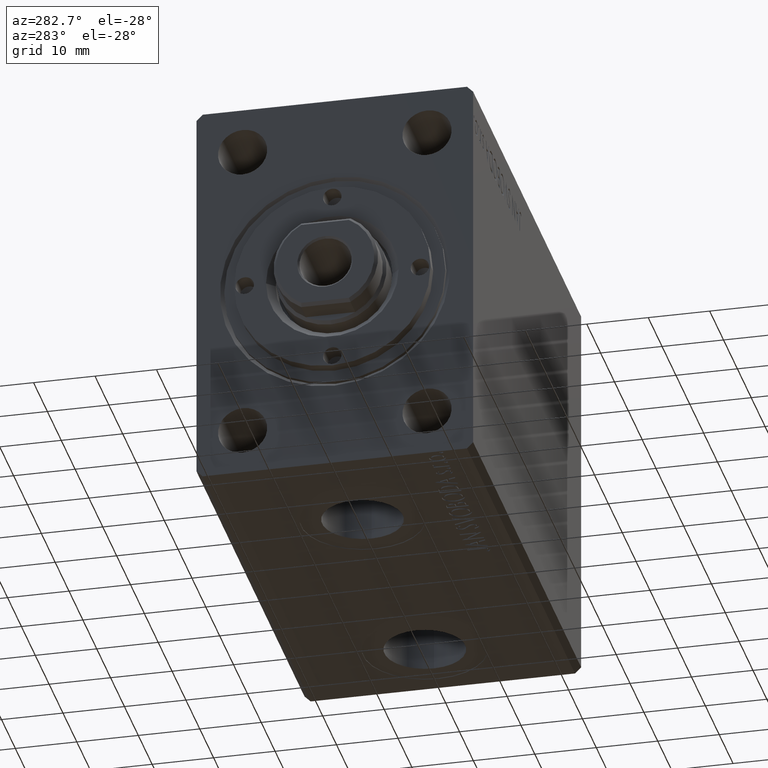
[diagram: clean part render]
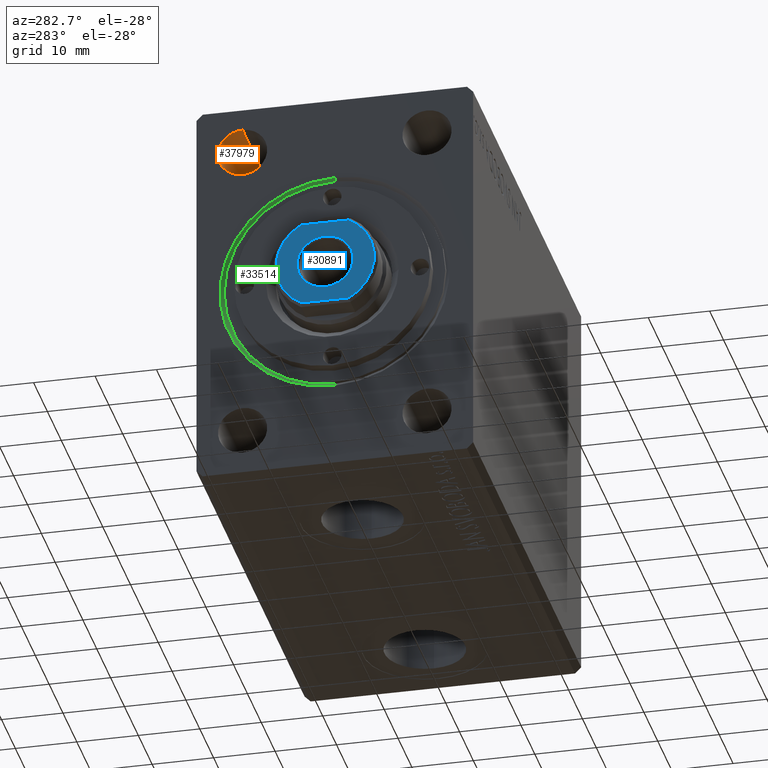
[diagram: same view with three faces highlighted in distinct colors, each labeled with its STEP entity id]
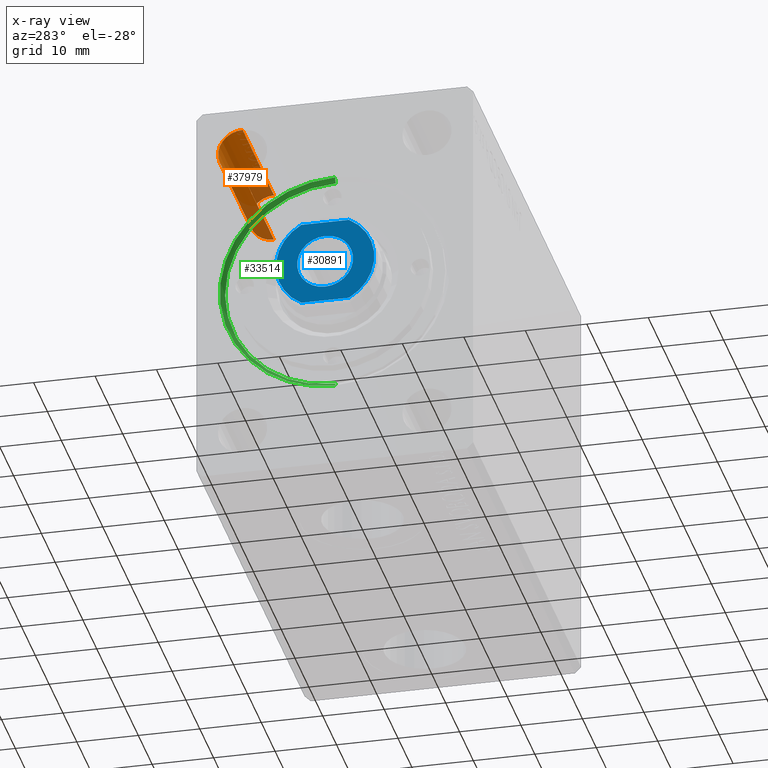
[diagram: x-ray of the same camera — body ghosted, the three highlighted faces saturated]
A machine part, auxiliary view with three faces highlighted in distinct colors.
The next image is the same camera in x-ray (body ghosted, the three faces saturated) — at least one of them is partly hidden behind the body in this view.
Their STEP definitions:

[orange] entity #37979 — the highlighted cylindrical surface (edge-blend (fillet) strip) has radius 4 mm, axis along (-1, -0, -0).
#2270 = VERTEX_POINT ( 'NONE', #20549 ) ;
#3091 = VECTOR ( 'NONE', #3822, 1000.000000000000000 ) ;
#3822 = DIRECTION ( 'NONE',  ( -1.000000000000000000, -0.000000000000000000, -0.000000000000000000 ) ) ;
#3898 = EDGE_CURVE ( 'NONE', #11748, #22157, #34385, .T. ) ;
#4143 = ORIENTED_EDGE ( 'NONE', *, *, #3898, .F. ) ;
#4702 = FACE_OUTER_BOUND ( 'NONE', #4785, .T. ) ;
#4785 = EDGE_LOOP ( 'NONE', ( #4143, #37177, #44143, #16825 ) ) ;
#5249 = VECTOR ( 'NONE', #29180, 1000.000000000000000 ) ;
#5989 = EDGE_CURVE ( 'NONE', #2270, #12817, #32512, .T. ) ;
#9918 = DIRECTION ( 'NONE',  ( -1.000000000000000000, -0.000000000000000000, -0.000000000000000000 ) ) ;
#11748 = VERTEX_POINT ( 'NONE', #24659 ) ;
#12817 = VERTEX_POINT ( 'NONE', #35869 ) ;
#14090 = CARTESIAN_POINT ( 'NONE',  ( 3.061616997868395467E-16, 15.00000000000000355, 25.00000000000000000 ) ) ;
#14962 = DIRECTION ( 'NONE',  ( -1.000000000000000000, -0.000000000000000000, -0.000000000000000000 ) ) ;
#16825 = ORIENTED_EDGE ( 'NONE', *, *, #25846, .T. ) ;
#17274 = CARTESIAN_POINT ( 'NONE',  ( 22.67000000000000171, 15.00000000000000355, 25.00000000000000000 ) ) ;
#17895 = CIRCLE ( 'NONE', #34999, 3.999999999999996447 ) ;
#18555 = CIRCLE ( 'NONE', #28544, 4.000000000000000000 ) ;
#19552 = CARTESIAN_POINT ( 'NONE',  ( 3.061616997868395467E-16, 15.00000000000000355, 21.00000000000000000 ) ) ;
#20549 = CARTESIAN_POINT ( 'NONE',  ( 22.67000000000000171, 15.00000000000000355, 28.99999999999999645 ) ) ;
#21220 = DIRECTION ( 'NONE',  ( -1.000000000000000000, -0.000000000000000000, -0.000000000000000000 ) ) ;
#22157 = VERTEX_POINT ( 'NONE', #19552 ) ;
#24342 = CARTESIAN_POINT ( 'NONE',  ( 0.000000000000000000, 15.00000000000000355, 21.00000000000000355 ) ) ;
#24659 = CARTESIAN_POINT ( 'NONE',  ( 22.67000000000000171, 15.00000000000000355, 21.00000000000000355 ) ) ;
#25846 = EDGE_CURVE ( 'NONE', #12817, #22157, #18555, .T. ) ;
#26340 = EDGE_CURVE ( 'NONE', #2270, #11748, #17895, .T. ) ;
#28544 = AXIS2_PLACEMENT_3D ( 'NONE', #14090, #21220, #31471 ) ;
#28794 = DIRECTION ( 'NONE',  ( 0.000000000000000000, 0.000000000000000000, 1.000000000000000000 ) ) ;
#29180 = DIRECTION ( 'NONE',  ( -1.000000000000000000, -0.000000000000000000, -0.000000000000000000 ) ) ;
#31471 = DIRECTION ( 'NONE',  ( 0.000000000000000000, 0.000000000000000000, 1.000000000000000000 ) ) ;
#31910 = CARTESIAN_POINT ( 'NONE',  ( 0.000000000000000000, 15.00000000000000355, 25.00000000000000000 ) ) ;
#32512 = LINE ( 'NONE', #41902, #5249 ) ;
#34385 = LINE ( 'NONE', #24342, #3091 ) ;
#34999 = AXIS2_PLACEMENT_3D ( 'NONE', #17274, #9918, #37135 ) ;
#35869 = CARTESIAN_POINT ( 'NONE',  ( 3.061616997868395467E-16, 15.00000000000000355, 29.00000000000000000 ) ) ;
#37135 = DIRECTION ( 'NONE',  ( 0.000000000000000000, 0.000000000000000000, 1.000000000000000000 ) ) ;
#37177 = ORIENTED_EDGE ( 'NONE', *, *, #26340, .F. ) ;
#37979 = ADVANCED_FACE ( 'NONE', ( #4702 ), #42174, .F. ) ;
#40425 = AXIS2_PLACEMENT_3D ( 'NONE', #31910, #14962, #28794 ) ;
#41902 = CARTESIAN_POINT ( 'NONE',  ( 0.000000000000000000, 15.00000000000000355, 28.99999999999999645 ) ) ;
#42174 = CYLINDRICAL_SURFACE ( 'NONE', #40425, 3.999999999999996447 ) ;
#44143 = ORIENTED_EDGE ( 'NONE', *, *, #5989, .T. ) ;

[blue] entity #30891 — the highlighted planar face has unit normal (-1, 0, 0).
#1243 = EDGE_CURVE ( 'NONE', #28349, #32442, #1638, .T. ) ;
#1329 = EDGE_CURVE ( 'NONE', #32442, #6501, #25827, .T. ) ;
#1428 = EDGE_CURVE ( 'NONE', #16262, #28349, #42886, .T. ) ;
#1638 = LINE ( 'NONE', #7677, #15093 ) ;
#2716 = AXIS2_PLACEMENT_3D ( 'NONE', #25989, #39590, #29557 ) ;
#3261 = CARTESIAN_POINT ( 'NONE',  ( 6.999999999999998224, 3.872983346207433009, 72.20000000000001705 ) ) ;
#4125 = FACE_BOUND ( 'NONE', #43705, .T. ) ;
#4650 = ORIENTED_EDGE ( 'NONE', *, *, #29125, .T. ) ;
#6501 = VERTEX_POINT ( 'NONE', #17272 ) ;
#6754 = ORIENTED_EDGE ( 'NONE', *, *, #1243, .T. ) ;
#7677 = CARTESIAN_POINT ( 'NONE',  ( -7.000000000000006217, -4.000000000000001776, 72.20000000000001705 ) ) ;
#7780 = DIRECTION ( 'NONE',  ( 1.000000000000000000, 0.000000000000000000, 0.000000000000000000 ) ) ;
#8114 = ORIENTED_EDGE ( 'NONE', *, *, #44065, .T. ) ;
#10004 = VERTEX_POINT ( 'NONE', #28167 ) ;
#11705 = ORIENTED_EDGE ( 'NONE', *, *, #1329, .T. ) ;
#12264 = VECTOR ( 'NONE', #26564, 1000.000000000000000 ) ;
#13387 = LINE ( 'NONE', #23215, #12264 ) ;
#13701 = AXIS2_PLACEMENT_3D ( 'NONE', #24742, #41039, #7780 ) ;
#14168 = FACE_OUTER_BOUND ( 'NONE', #32782, .T. ) ;
#15034 = DIRECTION ( 'NONE',  ( 0.000000000000000000, 0.000000000000000000, 1.000000000000000000 ) ) ;
#15093 = VECTOR ( 'NONE', #41588, 1000.000000000000000 ) ;
#15126 = AXIS2_PLACEMENT_3D ( 'NONE', #42678, #15034, #18590 ) ;
#16262 = VERTEX_POINT ( 'NONE', #3261 ) ;
#16952 = CARTESIAN_POINT ( 'NONE',  ( 0.000000000000000000, 0.000000000000000000, 72.20000000000001705 ) ) ;
#17272 = CARTESIAN_POINT ( 'NONE',  ( 7.000000000000006217, -3.872983346207433009, 72.20000000000001705 ) ) ;
#18130 = ORIENTED_EDGE ( 'NONE', *, *, #1428, .T. ) ;
#18374 = CIRCLE ( 'NONE', #2716, 4.550000000000005151 ) ;
#18590 = DIRECTION ( 'NONE',  ( 1.000000000000000000, 0.000000000000000000, -0.000000000000000000 ) ) ;
#21079 = PLANE ( 'NONE',  #15126 ) ;
#21529 = AXIS2_PLACEMENT_3D ( 'NONE', #16952, #22375, #44157 ) ;
#22375 = DIRECTION ( 'NONE',  ( 0.000000000000000000, 0.000000000000000000, 1.000000000000000000 ) ) ;
#23083 = CARTESIAN_POINT ( 'NONE',  ( -7.000000000000006217, -3.872983346207433009, 72.20000000000001705 ) ) ;
#23215 = CARTESIAN_POINT ( 'NONE',  ( 7.000000000000006217, 4.000000000000001776, 72.20000000000001705 ) ) ;
#24742 = CARTESIAN_POINT ( 'NONE',  ( 0.000000000000000000, 0.000000000000000000, 72.20000000000001705 ) ) ;
#25277 = CARTESIAN_POINT ( 'NONE',  ( 0.000000000000000000, 0.000000000000000000, 72.20000000000001705 ) ) ;
#25827 = CIRCLE ( 'NONE', #21529, 8.000000000000007105 ) ;
#25989 = CARTESIAN_POINT ( 'NONE',  ( 0.000000000000000000, 0.000000000000000000, 72.20000000000001705 ) ) ;
#26564 = DIRECTION ( 'NONE',  ( 0.000000000000000000, 1.000000000000000000, 0.000000000000000000 ) ) ;
#28167 = CARTESIAN_POINT ( 'NONE',  ( 4.550000000000005151, 0.000000000000000000, 72.20000000000001705 ) ) ;
#28202 = DIRECTION ( 'NONE',  ( 1.000000000000000000, 0.000000000000000000, 0.000000000000000000 ) ) ;
#28349 = VERTEX_POINT ( 'NONE', #31777 ) ;
#29125 = EDGE_CURVE ( 'NONE', #6501, #16262, #13387, .T. ) ;
#29557 = DIRECTION ( 'NONE',  ( 1.000000000000000000, 0.000000000000000000, 0.000000000000000000 ) ) ;
#30891 = ADVANCED_FACE ( 'NONE', ( #14168, #4125 ), #21079, .T. ) ;
#31082 = VERTEX_POINT ( 'NONE', #43786 ) ;
#31777 = CARTESIAN_POINT ( 'NONE',  ( -7.000000000000006217, 3.872983346207433009, 72.20000000000001705 ) ) ;
#32442 = VERTEX_POINT ( 'NONE', #23083 ) ;
#32782 = EDGE_LOOP ( 'NONE', ( #6754, #11705, #4650, #18130 ) ) ;
#33771 = CIRCLE ( 'NONE', #34472, 4.550000000000005151 ) ;
#34472 = AXIS2_PLACEMENT_3D ( 'NONE', #25277, #42443, #28202 ) ;
#38000 = ORIENTED_EDGE ( 'NONE', *, *, #39400, .T. ) ;
#39400 = EDGE_CURVE ( 'NONE', #10004, #31082, #18374, .T. ) ;
#39590 = DIRECTION ( 'NONE',  ( -0.000000000000000000, -0.000000000000000000, -1.000000000000000000 ) ) ;
#41039 = DIRECTION ( 'NONE',  ( 0.000000000000000000, 0.000000000000000000, 1.000000000000000000 ) ) ;
#41588 = DIRECTION ( 'NONE',  ( 0.000000000000000000, -1.000000000000000000, 0.000000000000000000 ) ) ;
#42443 = DIRECTION ( 'NONE',  ( -0.000000000000000000, -0.000000000000000000, -1.000000000000000000 ) ) ;
#42678 = CARTESIAN_POINT ( 'NONE',  ( 0.000000000000000000, 0.000000000000000000, 72.20000000000001705 ) ) ;
#42886 = CIRCLE ( 'NONE', #13701, 8.000000000000007105 ) ;
#43705 = EDGE_LOOP ( 'NONE', ( #38000, #8114 ) ) ;
#43786 = CARTESIAN_POINT ( 'NONE',  ( -4.550000000000005151, 5.572142936120464229E-16, 72.20000000000001705 ) ) ;
#44065 = EDGE_CURVE ( 'NONE', #31082, #10004, #33771, .T. ) ;
#44157 = DIRECTION ( 'NONE',  ( 1.000000000000000000, 0.000000000000000000, 0.000000000000000000 ) ) ;

[green] entity #33514 — the highlighted conical surface has half-angle 45 deg.
#1207 = DIRECTION ( 'NONE',  ( 0.000000000000000000, 0.000000000000000000, -1.000000000000000000 ) ) ;
#1477 = EDGE_CURVE ( 'NONE', #14021, #29403, #37192, .T. ) ;
#2599 = CARTESIAN_POINT ( 'NONE',  ( 0.7000000000000166089, 2.204364238465235428E-15, -18.00000000000000000 ) ) ;
#3683 = LINE ( 'NONE', #34469, #22005 ) ;
#3908 = DIRECTION ( 'NONE',  ( -0.7071067811865441310, 0.000000000000000000, 0.7071067811865510144 ) ) ;
#7292 = AXIS2_PLACEMENT_3D ( 'NONE', #14049, #24953, #11358 ) ;
#11146 = AXIS2_PLACEMENT_3D ( 'NONE', #11685, #31975, #1207 ) ;
#11358 = DIRECTION ( 'NONE',  ( 0.000000000000000000, 0.000000000000000000, -1.000000000000000000 ) ) ;
#11460 = DIRECTION ( 'NONE',  ( -1.000000000000000000, 0.000000000000000000, 0.000000000000000000 ) ) ;
#11600 = EDGE_CURVE ( 'NONE', #29403, #25935, #26917, .T. ) ;
#11685 = CARTESIAN_POINT ( 'NONE',  ( 0.000000000000000000, 0.000000000000000000, 0.000000000000000000 ) ) ;
#13279 = EDGE_CURVE ( 'NONE', #25935, #29386, #21841, .T. ) ;
#14021 = VERTEX_POINT ( 'NONE', #43399 ) ;
#14049 = CARTESIAN_POINT ( 'NONE',  ( 0.7000000000000166089, 0.000000000000000000, 0.000000000000000000 ) ) ;
#16664 = ORIENTED_EDGE ( 'NONE', *, *, #11600, .F. ) ;
#19801 = CARTESIAN_POINT ( 'NONE',  ( 0.7000000000000166089, 2.204364238465235428E-15, -18.00000000000000000 ) ) ;
#20209 = EDGE_CURVE ( 'NONE', #14021, #29386, #3683, .T. ) ;
#21061 = FACE_OUTER_BOUND ( 'NONE', #32393, .T. ) ;
#21084 = VECTOR ( 'NONE', #26253, 999.9999999999998863 ) ;
#21841 = CIRCLE ( 'NONE', #11146, 18.70000000000002061 ) ;
#22005 = VECTOR ( 'NONE', #3908, 999.9999999999998863 ) ;
#22031 = ORIENTED_EDGE ( 'NONE', *, *, #1477, .F. ) ;
#23858 = CARTESIAN_POINT ( 'NONE',  ( 0.000000000000000000, 2.290089514405552871E-15, -18.70000000000002061 ) ) ;
#24953 = DIRECTION ( 'NONE',  ( -1.000000000000000000, 0.000000000000000000, 0.000000000000000000 ) ) ;
#25935 = VERTEX_POINT ( 'NONE', #23858 ) ;
#26253 = DIRECTION ( 'NONE',  ( -0.7071067811865441310, 8.659560562354978464E-17, -0.7071067811865510144 ) ) ;
#26653 = ORIENTED_EDGE ( 'NONE', *, *, #20209, .T. ) ;
#26917 = LINE ( 'NONE', #2599, #21084 ) ;
#28694 = CONICAL_SURFACE ( 'NONE', #32244, 18.00000000000000000, 0.7853981633974532750 ) ;
#29386 = VERTEX_POINT ( 'NONE', #33625 ) ;
#29403 = VERTEX_POINT ( 'NONE', #19801 ) ;
#31975 = DIRECTION ( 'NONE',  ( 1.000000000000000000, 0.000000000000000000, 0.000000000000000000 ) ) ;
#32244 = AXIS2_PLACEMENT_3D ( 'NONE', #38003, #11460, #41577 ) ;
#32393 = EDGE_LOOP ( 'NONE', ( #16664, #22031, #26653, #42420 ) ) ;
#33514 = ADVANCED_FACE ( 'NONE', ( #21061 ), #28694, .F. ) ;
#33625 = CARTESIAN_POINT ( 'NONE',  ( 0.000000000000000000, 0.000000000000000000, 18.70000000000002061 ) ) ;
#34469 = CARTESIAN_POINT ( 'NONE',  ( 0.7000000000000166089, 0.000000000000000000, 18.00000000000000000 ) ) ;
#37192 = CIRCLE ( 'NONE', #7292, 18.00000000000000000 ) ;
#38003 = CARTESIAN_POINT ( 'NONE',  ( 0.7000000000000166089, 0.000000000000000000, 0.000000000000000000 ) ) ;
#41577 = DIRECTION ( 'NONE',  ( 0.000000000000000000, 0.000000000000000000, 1.000000000000000000 ) ) ;
#42420 = ORIENTED_EDGE ( 'NONE', *, *, #13279, .F. ) ;
#43399 = CARTESIAN_POINT ( 'NONE',  ( 0.7000000000000166089, 0.000000000000000000, 18.00000000000000000 ) ) ;